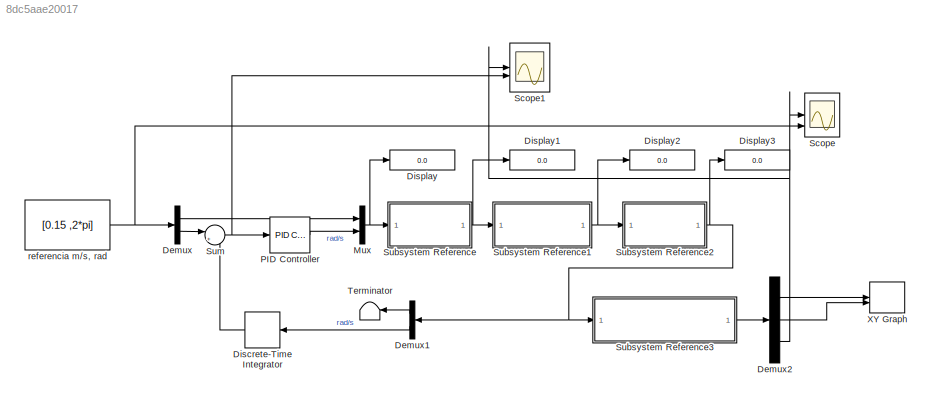
MODEL slx_8dc5aae20017
KIND model
CONFIG AbsTol = auto
CONFIG EnableMultiTasking = on
CONFIG FixedStep = 0.01
CONFIG MaxStep = auto
CONFIG MinStep = auto
CONFIG RelTol = 1e-3
CONFIG SampleTimeConstraint = Unconstrained
CONFIG SolverName = FixedStepDiscrete
CONFIG StartTime = 0.0
CONFIG StopTime = 8
WORKSPACE source: mxarray member
WORKSPACE d = 0.19
BLOCK [Demux] Demux
  Outputs = 2
BLOCK [Demux] Demux1
  NameLocation = top
  Outputs = 2
BLOCK [Demux] Demux2
  Outputs = 3
BLOCK [DiscreteIntegrator] Discrete-Time Integrator
  ICPrevOutput = DiscIntNeverNeededParam
  ICPrevScaledInput = DiscIntNeverNeededParam
  InitialConditionSetting = Auto
  SampleTime = -1
BLOCK [Display] Display
  Decimation = 1
BLOCK [Display] Display1
  Decimation = 1
BLOCK [Display] Display2
  Decimation = 1
BLOCK [Display] Display3
  Decimation = 1
BLOCK [Mux] Mux
  DisplayOption = bar
  Inputs = 2
BLOCK [Reference] PID Controller  REF=slpidlib/PID Controller
  LibrarySourceBlock = simulink/Continuous/PID Controller
  SourceBlock = slpidlib/PID Controller
  SourceType = PID 1dof
BLOCK [Scope] Scope
  Floating = off
  NumInputPorts = 3
  ScopeSpecificationString = Simulink.scopes.TimeScopeBlockCfg('CurrentConfiguration', extmgr.ConfigurationSet(extmgr.Configuration('Core','General UI',true),extmgr.Configuration('Core','Source UI',true),extmgr.Configuration('Sources','WiredSimulink',true),extmgr.Configuration('Visuals','Time Domain',true,'SerializedDisplays',{struct('MinYLimReal','-0.78633','MaxYLimReal','7.07696','YLabelReal','','MinYLimMag','0.00000','MaxY...<+2003ch>
BLOCK [Scope] Scope1
  Floating = off
  NumInputPorts = 2
  ScopeSpecificationString = Simulink.scopes.TimeScopeBlockCfg('CurrentConfiguration', extmgr.ConfigurationSet(extmgr.Configuration('Core','General UI',true),extmgr.Configuration('Core','Source UI',true),extmgr.Configuration('Sources','WiredSimulink',true,'DataLoggingVariableName','ScopeData1'),extmgr.Configuration('Visuals','Time Domain',true,'SerializedDisplays',{struct('MinYLimReal','-0.79471','MaxYLimReal','7.07789','YLab...<+1402ch>
BLOCK [SubSystem] Subsystem Reference
  ReferencedSubsystem = MCI
BLOCK [SubSystem] Subsystem Reference1
  ReferencedSubsystem = PieroControladoVPIZ
BLOCK [SubSystem] Subsystem Reference2
  ReferencedSubsystem = MCD
BLOCK [SubSystem] Subsystem Reference3
  ReferencedSubsystem = OdometriaZ
BLOCK [Sum] Sum
  Inputs = |+-
BLOCK [Terminator] Terminator
  NameLocation = top
BLOCK [Record] XY Graph
  CompatibilityTag = XY
  FileSettingsInternal = {"entries":[{"content":{"excelSettings":{"content":{},"type":"Streamout.ExcelSettings"}},"type":"Streamout.FileSettingStorage","uuid":""}],"packageUris":["http:\/\/schema.mathworks.com\/mf0\/streamout_blocks\/R2020a"],"version":"1.0"}
  Layout = [1 1]
  SignalsInternal = {"entries":[{"content":{"signals":[{"content":{"blockPath":[],"dimensions":[1],"domain":"","lineColor":"#a2142f","plots":[ 1 ],"port":1,"sid":["41"],"signalID":1,"signalName":"Demux2:1"},"type":"RecordBlkView.Signal","uuid":""},{"content":{"blockPath":[],"dimensions":[1],"domain":"","lineColor":"#139fff","plots":[ 1 ],"port":2,"sid":["41"],"signalID":2,"signalName":"Demux2:2"},"type":"RecordBlkVie...<+166ch>
  VisualizationBindings = {"xyplotplugin":{"info":[{"series":[{"bindingParametersList":[{"parameter":"X-Axis","signalID":1,"signalName":"Demux2:1"},{"parameter":"Y-Axis","signalID":2,"signalName":"Demux2:2"}],"seriesID":0}],"subplotID":1}]}}
BLOCK [Constant] referencia m//s, rad 
  SampleTime = 0.01
  Value = [0.15 ,2*pi]
LINE Demux1:1 -> Terminator:1
LINE Demux1:2 -> Discrete-Time Integrator:1
LINE Demux2:1 -> XY Graph:1
LINE Demux2:2 -> XY Graph:2
NET Demux2:3 -> Scope1:1, Scope:1
LINE Demux:1 -> Mux:1
LINE Demux:2 -> Sum:1
LINE Discrete-Time Integrator:1 -> Sum:2
NET Mux:1 -> Display:1, Subsystem Reference:1
LINE PID Controller:1 -> Mux:2
NET Subsystem Reference1:1 -> Display2:1, Subsystem Reference2:1
NET Subsystem Reference2:1 -> Demux1:1, Display3:1, Subsystem Reference3:1
LINE Subsystem Reference3:1 -> Demux2:1
NET Subsystem Reference:1 -> Display1:1, Subsystem Reference1:1
NET Sum:1 -> PID Controller:1, Scope1:2
NET referencia m//s, rad :1 -> Demux:1, Scope:3
note: NET lines group one-source signal fan-out (src -> all destinations, sorted); 1:1 wires keep LINE
